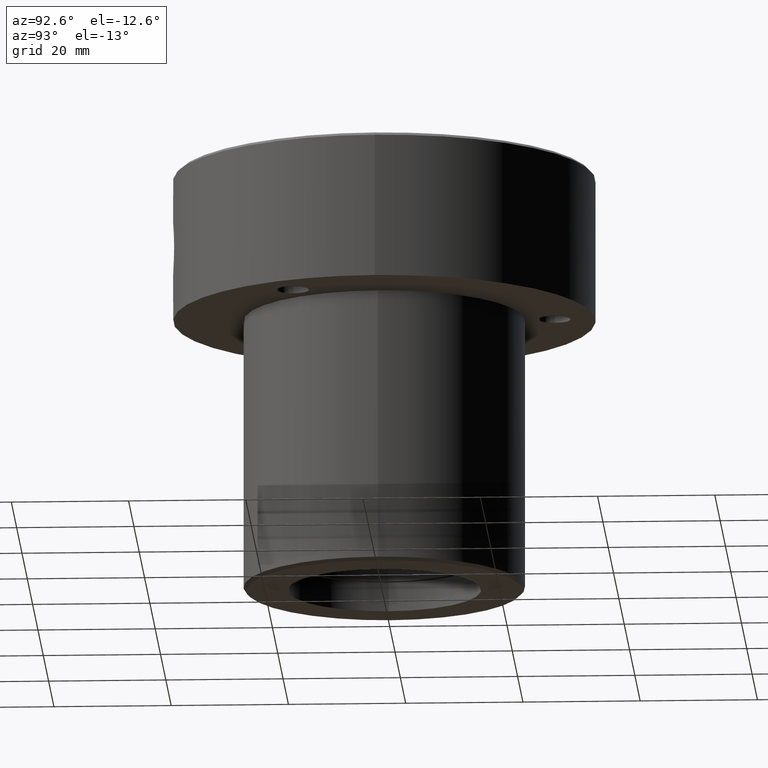
[diagram: clean part render]
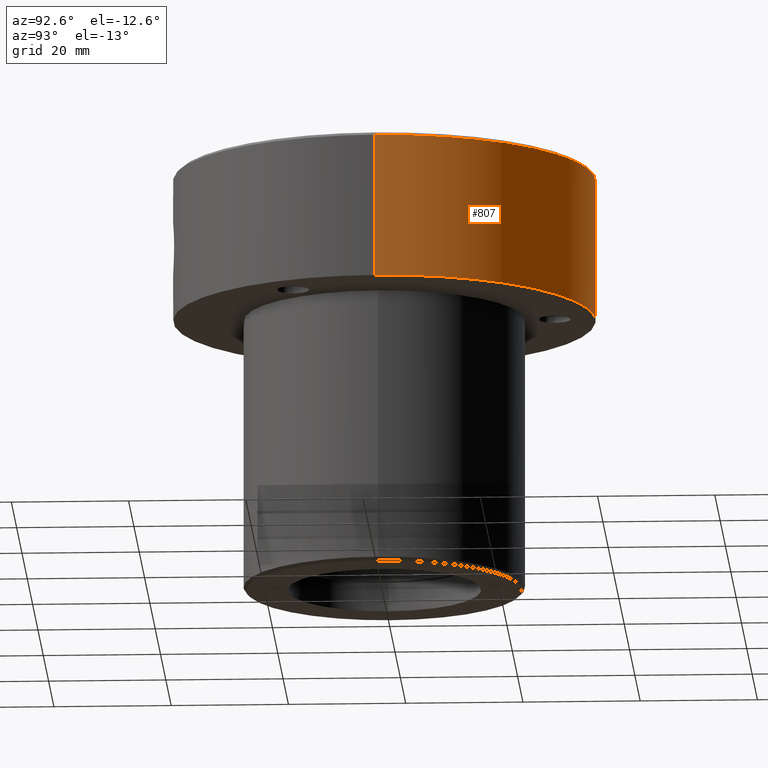
[diagram: same view with one face highlighted and labeled with its STEP entity id]
A machine part, auxiliary view. The second image highlights one B-rep face of the part: STEP entity #807.
In plain terms, the highlighted cylindrical surface (partial cylindrical patch) has radius 36 mm, axis along (-0, -0, 1).
Its self-contained STEP definition (entity closure, byte-faithful):
#6 = ORIENTED_EDGE ( 'NONE', *, *, #950, .T. ) ;
#16 = VECTOR ( 'NONE', #64, 1000.000000000000000 ) ;
#21 = ORIENTED_EDGE ( 'NONE', *, *, #798, .T. ) ;
#52 = LINE ( 'NONE', #150, #16 ) ;
#64 = DIRECTION ( 'NONE',  ( -0.000000000000000000, -0.000000000000000000, 1.000000000000000000 ) ) ;
#72 = AXIS2_PLACEMENT_3D ( 'NONE', #135, #500, #712 ) ;
#92 = CARTESIAN_POINT ( 'NONE',  ( 36.00000000000000000, 0.000000000000000000, -24.99999999999999289 ) ) ;
#135 = CARTESIAN_POINT ( 'NONE',  ( 0.000000000000000000, 0.000000000000000000, -0.4999999999999796274 ) ) ;
#150 = CARTESIAN_POINT ( 'NONE',  ( 36.00000000000000000, 0.000000000000000000, 0.000000000000000000 ) ) ;
#170 = DIRECTION ( 'NONE',  ( 1.000000000000000000, 0.000000000000000000, 0.000000000000000000 ) ) ;
#201 = AXIS2_PLACEMENT_3D ( 'NONE', #725, #261, #921 ) ;
#256 = VERTEX_POINT ( 'NONE', #726 ) ;
#261 = DIRECTION ( 'NONE',  ( -0.000000000000000000, -0.000000000000000000, 1.000000000000000000 ) ) ;
#274 = CIRCLE ( 'NONE', #201, 36.00000000000000000 ) ;
#328 = EDGE_LOOP ( 'NONE', ( #21, #574, #6, #1057 ) ) ;
#347 = DIRECTION ( 'NONE',  ( -0.000000000000000000, -0.000000000000000000, 1.000000000000000000 ) ) ;
#383 = VERTEX_POINT ( 'NONE', #1013 ) ;
#400 = CIRCLE ( 'NONE', #72, 36.00000000000000000 ) ;
#453 = CARTESIAN_POINT ( 'NONE',  ( 0.000000000000000000, 0.000000000000000000, 0.000000000000000000 ) ) ;
#484 = VERTEX_POINT ( 'NONE', #1056 ) ;
#500 = DIRECTION ( 'NONE',  ( 0.000000000000000000, 0.000000000000000000, -1.000000000000000000 ) ) ;
#574 = ORIENTED_EDGE ( 'NONE', *, *, #694, .T. ) ;
#616 = AXIS2_PLACEMENT_3D ( 'NONE', #453, #347, #170 ) ;
#626 = FACE_OUTER_BOUND ( 'NONE', #328, .T. ) ;
#652 = DIRECTION ( 'NONE',  ( -0.000000000000000000, -0.000000000000000000, 1.000000000000000000 ) ) ;
#670 = EDGE_CURVE ( 'NONE', #1194, #383, #52, .T. ) ;
#694 = EDGE_CURVE ( 'NONE', #484, #256, #905, .T. ) ;
#712 = DIRECTION ( 'NONE',  ( 1.000000000000000000, 0.000000000000000000, 0.000000000000000000 ) ) ;
#725 = CARTESIAN_POINT ( 'NONE',  ( 0.000000000000000000, 0.000000000000000000, -24.99999999999999289 ) ) ;
#726 = CARTESIAN_POINT ( 'NONE',  ( -36.00000000000000000, 4.408728476930470856E-15, -0.4999999999999796274 ) ) ;
#740 = CARTESIAN_POINT ( 'NONE',  ( -36.00000000000000000, 4.408728476930470856E-15, 0.000000000000000000 ) ) ;
#798 = EDGE_CURVE ( 'NONE', #1194, #484, #274, .T. ) ;
#807 = ADVANCED_FACE ( 'NONE', ( #626 ), #1217, .T. ) ;
#905 = LINE ( 'NONE', #740, #1203 ) ;
#921 = DIRECTION ( 'NONE',  ( 1.000000000000000000, 0.000000000000000000, 0.000000000000000000 ) ) ;
#950 = EDGE_CURVE ( 'NONE', #256, #383, #400, .T. ) ;
#1013 = CARTESIAN_POINT ( 'NONE',  ( 36.00000000000000000, 0.000000000000000000, -0.4999999999999796274 ) ) ;
#1056 = CARTESIAN_POINT ( 'NONE',  ( -36.00000000000000000, 4.408728476930470856E-15, -24.99999999999999289 ) ) ;
#1057 = ORIENTED_EDGE ( 'NONE', *, *, #670, .F. ) ;
#1194 = VERTEX_POINT ( 'NONE', #92 ) ;
#1203 = VECTOR ( 'NONE', #652, 1000.000000000000000 ) ;
#1217 = CYLINDRICAL_SURFACE ( 'NONE', #616, 36.00000000000000000 ) ;